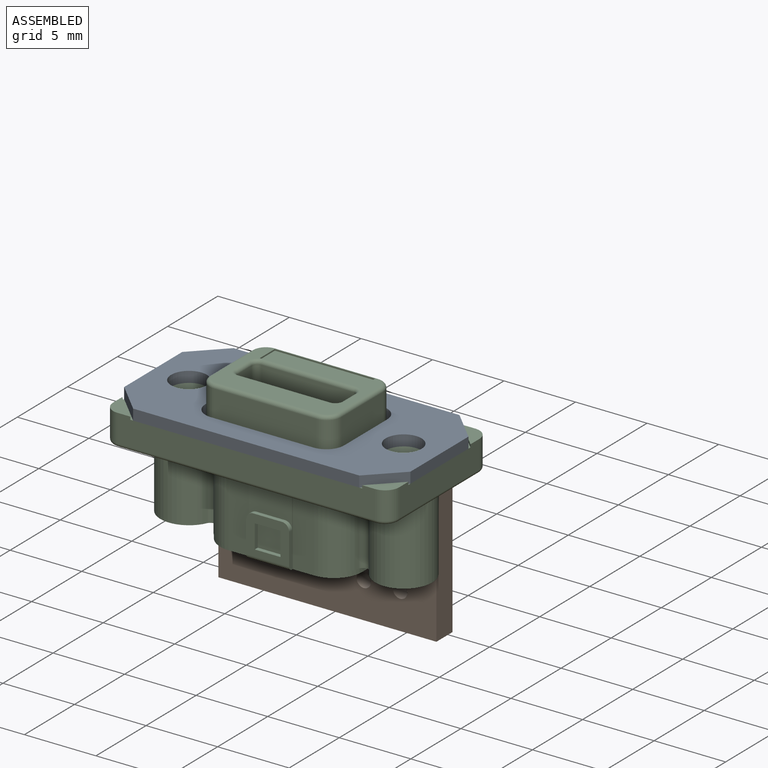
[diagram: assembled view]
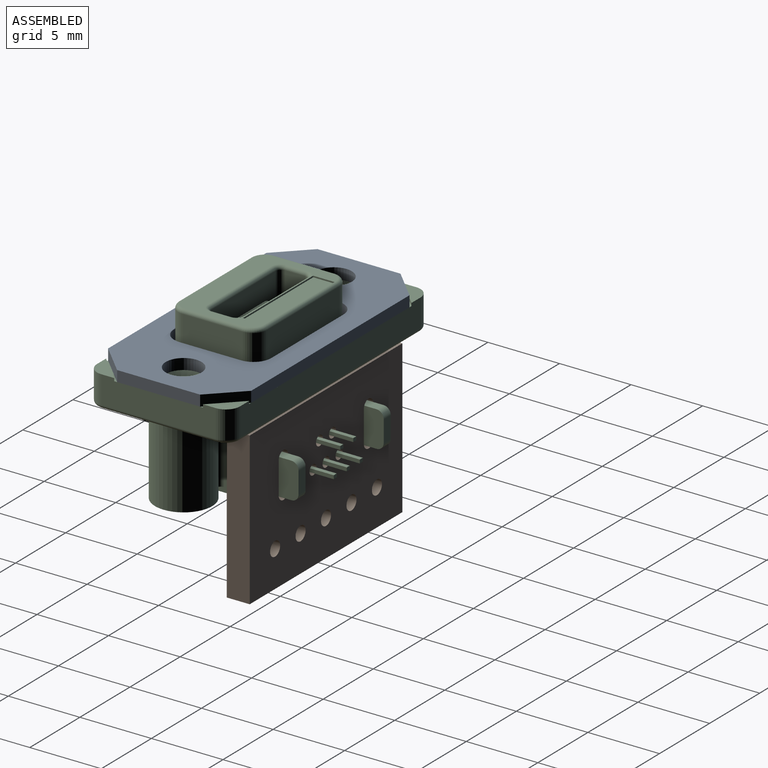
[diagram: assembled view, second angle]
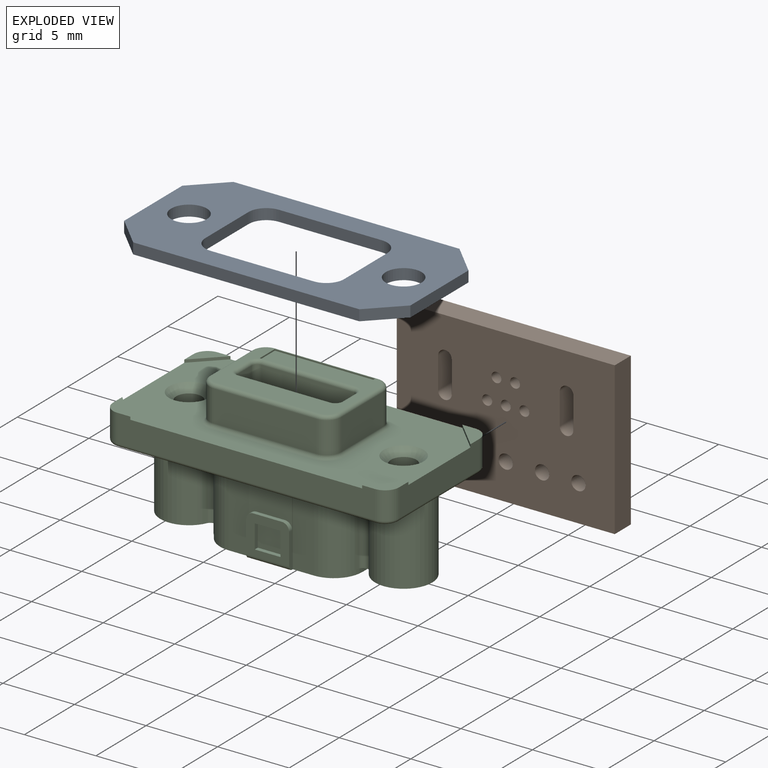
[diagram: exploded view]
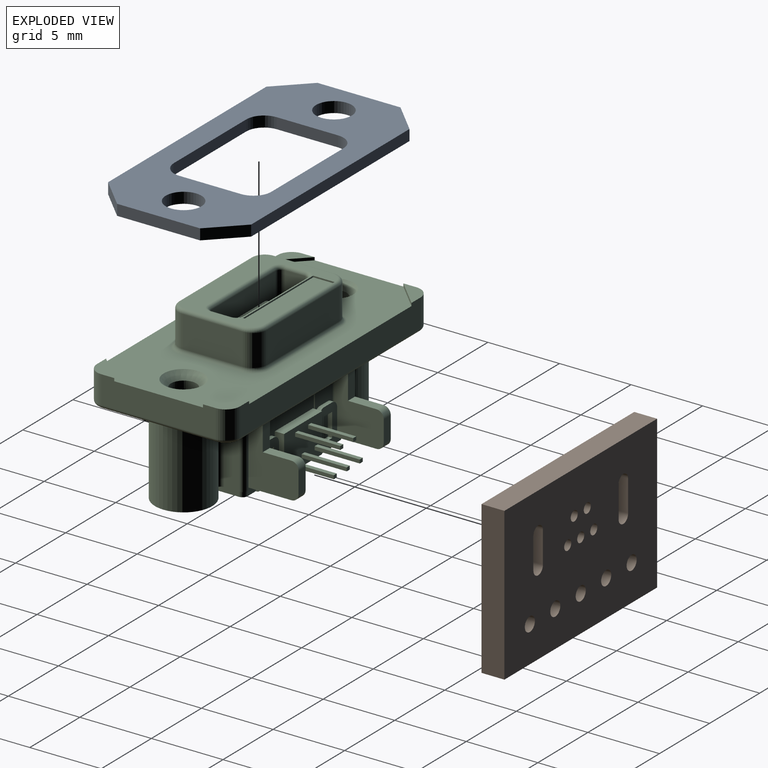
[diagram: exploded view, second angle]
ASSEMBLY  parts=3 mates=2
PART A: 20 faces, bbox 20x10x0.8 mm
  f0: plane 20x10mm, normal (0,0,1), area 116.7mm2, adj f1,f2,f3,f4,f5,f6,f7,f8
  f1: plane 2.1x2.1mm, normal (0.71,-0.71,0), area 2.3mm2, adj f0,f2,f12,f14
  f2: plane 5.8x0.76mm, normal (1,0,0), area 4.4mm2, adj f0,f1,f3,f12
  f3: plane 2.1x2.1mm, normal (0.71,0.71,0), area 2.3mm2, adj f0,f2,f4,f12
  f4: plane 15.8x0.76mm, normal (0,1,0), area 12mm2, adj f0,f3,f5,f12
  f5: plane 2.1x2.1mm, normal (-0.71,0.71,0), area 2.3mm2, adj f0,f4,f12,f13
  f6: plane 4.3x0.76mm, normal (1,0,0), area 3.3mm2, adj f0,f7,f11,f12
  f7: cylinder r=1.25mm len=1.25mm, axis (0,0,-1), area 1.5mm2, adj f0,f6,f8,f12
  f8: plane 7.2x0.76mm, normal (0,-1,0), area 5.5mm2, adj f0,f7,f9,f12
  f9: cylinder r=1.25mm len=1.25mm, axis (0,0,-1), area 1.5mm2, adj f0,f8,f10,f12
  f10: plane 4.3x0.76mm, normal (-1,0,0), area 3.3mm2, adj f0,f9,f12,f16
  f11: cylinder r=1.25mm len=1.25mm, axis (0,0,-1), area 1.5mm2, adj f0,f6,f12,f17
  f12: plane 20x10mm, normal (0,0,-1), area 116.7mm2, adj f1,f2,f3,f4,f5,f6,f7,f8
  f13: plane 5.8x0.76mm, normal (-1,0,0), area 4.4mm2, adj f0,f5,f12,f15
  f14: plane 15.8x0.76mm, normal (0,-1,0), area 12mm2, adj f0,f1,f12,f15
  f15: plane 2.1x2.1mm, normal (-0.71,-0.71,0), area 2.3mm2, adj f0,f12,f13,f14
  f16: cylinder r=1.25mm len=1.25mm, axis (0,0,-1), area 1.5mm2, adj f0,f10,f12,f17
  f17: plane 7.2x0.76mm, normal (0,1,0), area 5.5mm2, adj f0,f11,f12,f16
  f18: cylinder r=1.25mm len=2.5mm, axis (0,0,-1), area 6mm2, adj f0,f12
  f19: cylinder r=1.25mm len=2.5mm, axis (0,0,-1), area 6mm2, adj f0,f12
PART B: 24 faces, bbox 15.2x1.6x10.7 mm
  f0: cylinder r=0.47mm len=1.6mm, axis (0,-1,0), area 2.4mm2, adj f1,f21,f22,f23
  f1: plane 2.2x1.6mm, normal (1,0,0), area 3.5mm2, adj f0,f2,f22,f23
  f2: cylinder r=0.47mm len=1.6mm, axis (0,-1,0), area 2.4mm2, adj f1,f21,f22,f23
  f3: plane 15.24x1.6mm, normal (0,0,1), area 24.4mm2, adj f4,f19,f22,f23
  f4: plane 10.66x1.6mm, normal (1,0,0), area 17.1mm2, adj f3,f5,f22,f23
  f5: plane 15.24x1.6mm, normal (0,0,-1), area 24.4mm2, adj f4,f19,f22,f23
  f6: cylinder r=0.47mm len=1.6mm, axis (0,-1,0), area 2.4mm2, adj f7,f20,f22,f23
  f7: plane 2.2x1.6mm, normal (-1,0,0), area 3.5mm2, adj f6,f8,f22,f23
  f8: cylinder r=0.47mm len=1.6mm, axis (0,-1,0), area 2.4mm2, adj f7,f20,f22,f23
  f9: cylinder r=0.5mm len=1.6mm, axis (0,-1,0), area 5mm2, adj f22,f23
  f10: cylinder r=0.5mm len=1.6mm, axis (0,-1,0), area 5mm2, adj f22,f23
  f11: cylinder r=0.5mm len=1.6mm, axis (0,-1,0), area 5mm2, adj f22,f23
  f12: cylinder r=0.5mm len=1.6mm, axis (0,-1,0), area 5mm2, adj f22,f23
  f13: cylinder r=0.5mm len=1.6mm, axis (0,-1,0), area 5mm2, adj f22,f23
  f14: cylinder r=0.35mm len=1.6mm, axis (0,-1,0), area 3.5mm2, adj f22,f23
  f15: cylinder r=0.35mm len=1.6mm, axis (0,-1,0), area 3.5mm2, adj f22,f23
  f16: cylinder r=0.35mm len=1.6mm, axis (0,-1,0), area 3.5mm2, adj f22,f23
  f17: cylinder r=0.35mm len=1.6mm, axis (0,-1,0), area 3.5mm2, adj f22,f23
  f18: cylinder r=0.35mm len=1.6mm, axis (0,-1,0), area 3.5mm2, adj f22,f23
  f19: plane 10.66x1.6mm, normal (-1,0,0), area 17.1mm2, adj f3,f5,f22,f23
  f20: plane 2.2x1.6mm, normal (1,0,0), area 3.5mm2, adj f6,f8,f22,f23
  f21: plane 2.2x1.6mm, normal (-1,0,0), area 3.5mm2, adj f0,f2,f22,f23
  f22: plane 15.24x10.66mm, normal (0,1,0), area 151mm2, adj f0,f1,f2,f3,f4,f5,f6,f7
  f23: plane 15.24x10.66mm, normal (0,-1,0), area 151mm2, adj f0,f1,f2,f3,f4,f5,f6,f7
PART C: 225 faces, bbox 20.2x11.3x10.5 mm
  f0: plane 5.48x0.78mm, normal (0,1,0), area 1.1mm2, adj f6,f81,f82,f83,f175,f180,f181,f183
  f1: plane 5.48x0.78mm, normal (0,1,0), area 1.1mm2, adj f6,f84,f90,f91,f166,f171,f172,f174
  f2: plane 5.83x4mm, normal (0,1,0), area 13mm2, adj f6,f104,f105,f108,f136,f137,f138,f139
  f3: plane 3.33x1.8mm, normal (0,1,0), area 5.2mm2, adj f6,f103,f104,f130,f131,f132
  f4: plane 3.33x1.8mm, normal (0,1,0), area 5.2mm2, adj f6,f105,f106,f121,f122,f123
  f5: plane 3.33x3mm, normal (0,-1,0), area 8.6mm2, adj f6,f99,f100,f110,f115,f116
  f6: plane 19.5x9.5mm, normal (0,0,-1), area 109.8mm2, adj f0,f1,f2,f3,f4,f5,f76,f77
  f7: plane 20x10mm, normal (0,0,1), area 117mm2, adj f8,f10,f12,f14,f17,f19,f21,f23
  f8: plane 8x1.95mm, normal (-1,0,0), area 14.4mm2, adj f7,f9,f15,f20,f21,f22,f23,f217
  f9: cylinder r=1mm len=1.95mm, axis (0,0,1), area 3.1mm2, adj f8,f10,f20,f219
  f10: plane 18x1.95mm, normal (0,-1,0), area 31.9mm2, adj f7,f9,f11,f18,f19,f20,f21,f221
  f11: cylinder r=1mm len=1.95mm, axis (0,0,1), area 3.1mm2, adj f10,f12,f18,f223
  f12: plane 8x1.95mm, normal (1,0,0), area 14.4mm2, adj f7,f11,f13,f16,f17,f18,f19,f224
  f13: cylinder r=1mm len=1.95mm, axis (0,0,1), area 3.1mm2, adj f12,f14,f16,f222
  f14: plane 18x1.95mm, normal (0,1,0), area 31.9mm2, adj f7,f13,f15,f16,f17,f22,f23,f220
  f15: cylinder r=1mm len=1.95mm, axis (0,0,1), area 3.1mm2, adj f8,f14,f22,f218
  f16: plane 1.9x1.9mm, normal (0,0,1), area 1.6mm2, adj f12,f13,f14,f17
  f17: plane 1.9x1.9mm, normal (-0.71,-0.71,0), area 0.5mm2, adj f7,f12,f14,f16
  f18: plane 1.9x1.9mm, normal (0,0,1), area 1.6mm2, adj f10,f11,f12,f19
  f19: plane 1.9x1.9mm, normal (-0.71,0.71,0), area 0.5mm2, adj f7,f10,f12,f18
  f20: plane 1.9x1.9mm, normal (0,0,1), area 1.6mm2, adj f8,f9,f10,f21
  f21: plane 1.9x1.9mm, normal (0.71,0.71,0), area 0.5mm2, adj f7,f8,f10,f20
  f22: plane 1.9x1.9mm, normal (0,0,1), area 1.6mm2, adj f8,f14,f15,f23
  f23: plane 1.9x1.9mm, normal (0.71,-0.71,0), area 0.5mm2, adj f7,f8,f14,f22
  f24: plane 8.7x5.7mm, normal (0,0,1), area 18.3mm2, adj f39,f40,f43,f193,f194,f195,f196,f197
  f25: cylinder r=1mm len=2.2mm, axis (0,0,-1), area 3.5mm2, adj f26,f44,f199,f214
  f26: plane 7.2x2.2mm, normal (0,-1,0), area 15.8mm2, adj f25,f27,f197,f216
  f27: cylinder r=1mm len=2.2mm, axis (0,0,-1), area 3.5mm2, adj f26,f28,f195,f215
  f28: plane 4.2x2.2mm, normal (1,0,0), area 9.2mm2, adj f27,f29,f193,f213
  f29: cylinder r=1mm len=2.2mm, axis (0,0,-1), area 3.5mm2, adj f28,f30,f194,f211
  f30: plane 7.2x2.2mm, normal (0,1,0), area 15.8mm2, adj f29,f31,f196,f209
  f31: cylinder r=1mm len=2.2mm, axis (0,0,-1), area 3.5mm2, adj f30,f44,f198,f210
  f32: plane 6.42x2.45mm, normal (0,-1,0), area 15.7mm2, adj f33,f42,f45,f208
  f33: cylinder r=0.4mm len=2.45mm, axis (0,0,-1), area 1.5mm2, adj f32,f34,f45,f206
  f34: plane 2.45x1.38mm, normal (-1,0,0), area 3.4mm2, adj f33,f35,f45,f204
  f35: cylinder r=0.4mm len=2.45mm, axis (0,0,-1), area 1.5mm2, adj f34,f36,f45,f202
  f36: plane 6.42x2.45mm, normal (0,1,0), area 15.7mm2, adj f35,f37,f45,f201
  f37: cylinder r=0.4mm len=2.45mm, axis (0,0,-1), area 1.5mm2, adj f36,f38,f45,f203
  f38: plane 2.45x1.38mm, normal (1,0,0), area 3.4mm2, adj f37,f42,f45,f205
  f39: plane 7x0.1mm, normal (0,1,0), area 0.7mm2, adj f24,f40,f43,f46
  f40: plane 1.5x0.1mm, normal (1,0,0), area 0.2mm2, adj f24,f39,f41,f46
  f41: plane 7x0.1mm, normal (0,-1,0), area 0.7mm2, adj f40,f43,f46,f196
  f42: cylinder r=0.4mm len=2.45mm, axis (0,0,-1), area 1.5mm2, adj f32,f38,f45,f207
  f43: plane 1.5x0.1mm, normal (-1,0,0), area 0.2mm2, adj f24,f39,f41,f46
  f44: plane 4.2x2.2mm, normal (-1,0,0), area 9.2mm2, adj f25,f31,f200,f212
  f45: plane 7.22x2.18mm, normal (0,0,1), area 14mm2, adj f32,f33,f34,f35,f36,f37,f38,f42
  f46: plane 7x1.5mm, normal (0,0,1), area 10.5mm2, adj f39,f40,f41,f43
  f47: plane 3.46x0.6mm, normal (0,0,1), area 1.6mm2, adj f48,f49,f50,f51,f52,f53,f54,f55
  f48: plane 1.27x0.4mm, normal (0,1,0), area 0.5mm2, adj f45,f47,f49,f75
  f49: plane 1.27x0.23mm, normal (1,0,0), area 0.3mm2, adj f45,f47,f48,f50
  f50: plane 1.27x0.08mm, normal (0,1,0), area 0.1mm2, adj f45,f47,f49,f51
  f51: cylinder r=0.15mm len=1.27mm, axis (0,0,-1), area 0.3mm2, adj f45,f47,f50,f52
  f52: plane 1.27x0.3mm, normal (-1,0,0), area 0.4mm2, adj f45,f47,f51,f53
  f53: cylinder r=0.15mm len=1.27mm, axis (0,0,-1), area 0.3mm2, adj f45,f47,f52,f54
  f54: plane 3.16x1.27mm, normal (0,-1,0), area 4mm2, adj f45,f47,f53,f55
  f55: cylinder r=0.15mm len=1.27mm, axis (0,0,-1), area 0.3mm2, adj f45,f47,f54,f56
  f56: plane 1.27x0.3mm, normal (1,0,0), area 0.4mm2, adj f45,f47,f55,f57
  f57: cylinder r=0.15mm len=1.27mm, axis (0,0,-1), area 0.3mm2, adj f45,f47,f56,f58
  f58: plane 1.27x0.08mm, normal (0,1,0), area 0.1mm2, adj f45,f47,f57,f59
  f59: plane 1.27x0.23mm, normal (-1,0,0), area 0.3mm2, adj f45,f47,f58,f60
  f60: plane 1.27x0.4mm, normal (0,1,0), area 0.5mm2, adj f45,f47,f59,f61
  f61: plane 1.27x0.23mm, normal (1,0,0), area 0.3mm2, adj f45,f47,f60,f62
  f62: plane 1.27x0.25mm, normal (0,1,0), area 0.3mm2, adj f45,f47,f61,f63
  f63: plane 1.27x0.24mm, normal (-1,0,0), area 0.3mm2, adj f45,f47,f62,f64
  f64: plane 1.27x0.4mm, normal (0,1,0), area 0.5mm2, adj f45,f47,f63,f65
  f65: plane 1.27x0.24mm, normal (1,0,0), area 0.3mm2, adj f45,f47,f64,f66
  f66: plane 1.27x0.25mm, normal (0,1,0), area 0.3mm2, adj f45,f47,f65,f67
  f67: plane 1.27x0.25mm, normal (-1,0,0), area 0.3mm2, adj f45,f47,f66,f68
  f68: plane 1.27x0.4mm, normal (0,1,0), area 0.5mm2, adj f45,f47,f67,f69
  f69: plane 1.27x0.25mm, normal (1,0,0), area 0.3mm2, adj f45,f47,f68,f70
  f70: plane 1.27x0.25mm, normal (0,1,0), area 0.3mm2, adj f45,f47,f69,f71
  f71: plane 1.27x0.24mm, normal (-1,0,0), area 0.3mm2, adj f45,f47,f70,f72
  f72: plane 1.27x0.4mm, normal (0,1,0), area 0.5mm2, adj f45,f47,f71,f73
  f73: plane 1.27x0.24mm, normal (1,0,0), area 0.3mm2, adj f45,f47,f72,f74
  f74: plane 1.27x0.25mm, normal (0,1,0), area 0.3mm2, adj f45,f47,f73,f75
  f75: plane 1.27x0.23mm, normal (-1,0,0), area 0.3mm2, adj f45,f47,f48,f74
  f76: cylinder r=2mm len=5.48mm, axis (0,0,-1), area 15mm2, adj f6,f77,f83,f92
  f77: cylinder r=0.38mm len=5.48mm, axis (0,0,-1), area 5.2mm2, adj f6,f76,f78,f83
  f78: cylinder r=2mm len=5.48mm, axis (0,0,-1), area 59mm2, adj f6,f77,f79,f83
  f79: cylinder r=0.38mm len=5.48mm, axis (0,0,-1), area 5.6mm2, adj f6,f78,f80,f83
  f80: plane 5.48x1.07mm, normal (-1,0,0), area 5.9mm2, adj f6,f79,f81,f83
  f81: cylinder r=0.35mm len=5.48mm, axis (0,0,-1), area 3mm2, adj f0,f6,f80,f83
  f82: plane 5.48x0.05mm, normal (1,0,0), area 0.3mm2, adj f0,f6,f83,f102
  f83: plane 6.5x5mm, normal (0,0,-1), area 13.5mm2, adj f0,f76,f77,f78,f79,f80,f81,f82
  f84: cylinder r=0.35mm len=5.48mm, axis (0,0,-1), area 3mm2, adj f1,f6,f85,f90
  f85: plane 5.48x1.07mm, normal (1,0,0), area 5.9mm2, adj f6,f84,f86,f90
  f86: cylinder r=0.38mm len=5.48mm, axis (0,0,-1), area 5.6mm2, adj f6,f85,f87,f90
  f87: cylinder r=2mm len=5.48mm, axis (0,0,-1), area 59mm2, adj f6,f86,f88,f90
  f88: cylinder r=0.38mm len=5.48mm, axis (0,0,-1), area 5.2mm2, adj f6,f87,f89,f90
  f89: cylinder r=2mm len=5.48mm, axis (0,0,-1), area 15mm2, adj f6,f88,f90,f107
  f90: plane 6.5x5mm, normal (0,0,-1), area 13.5mm2, adj f1,f84,f85,f86,f87,f88,f89,f91
  f91: plane 5.48x0.05mm, normal (-1,0,0), area 0.3mm2, adj f1,f6,f90,f95
  f92: cylinder r=2mm len=5.83mm, axis (0,0,-1), area 1.2mm2, adj f6,f76,f83,f93,f101,f108
  f93: plane 2.6x0.35mm, normal (-1,0,0), area 0.9mm2, adj f83,f92,f94,f108
  f94: cylinder r=0.35mm len=0.35mm, axis (0,0,-1), area 0.2mm2, adj f83,f93,f102,f108
  f95: plane 5.83x0.83mm, normal (0,1,0), area 0.7mm2, adj f6,f90,f91,f96,f106,f108
  f96: cylinder r=0.35mm len=0.35mm, axis (0,0,-1), area 0.2mm2, adj f90,f95,f97,f108
  f97: plane 2.6x0.35mm, normal (1,0,0), area 0.9mm2, adj f90,f96,f107,f108
  f98: plane 5.83x1.48mm, normal (0,-1,0), area 8.6mm2, adj f6,f99,f107,f108
  f99: plane 5.83x0.37mm, normal (1,0,0), area 1.1mm2, adj f5,f6,f98,f108,f110,f111,f184
  f100: plane 5.83x0.37mm, normal (-1,0,0), area 1.1mm2, adj f5,f6,f101,f108,f111,f116,f184
  f101: plane 5.83x1.48mm, normal (0,-1,0), area 8.6mm2, adj f6,f92,f100,f108
  f102: plane 5.83x0.83mm, normal (0,1,0), area 0.7mm2, adj f6,f82,f83,f94,f103,f108
  f103: plane 5.83x0.37mm, normal (-1,0,0), area 1.1mm2, adj f3,f6,f102,f108,f130,f134,f185
  f104: plane 5.83x0.37mm, normal (1,0,0), area 1.1mm2, adj f2,f3,f6,f108,f132,f134,f185
  f105: plane 5.83x0.37mm, normal (-1,0,0), area 1.1mm2, adj f2,f4,f6,f108,f121,f125,f186
  f106: plane 5.83x0.37mm, normal (1,0,0), area 1.1mm2, adj f4,f6,f95,f108,f123,f125,f186
  f107: cylinder r=2mm len=5.83mm, axis (0,0,-1), area 1.2mm2, adj f6,f89,f90,f97,f98,f108
  f108: plane 9.95x5.08mm, normal (0,0,-1), area 47.9mm2, adj f2,f92,f93,f94,f95,f96,f97,f98
  f109: plane 1.65x0.3mm, normal (1,0,0), area 0.5mm2, adj f111,f112,f113,f117
  f110: cylinder r=0.5mm len=0.5mm, axis (0,-1,0), area 0.2mm2, adj f5,f99,f111,f115
  f111: plane 3x2.7mm, normal (0,-1,0), area 5mm2, adj f99,f100,f109,f110,f112,f113,f114,f115
  f112: plane 1.8x0.3mm, normal (0,0,1), area 0.5mm2, adj f109,f111,f114,f117
  f113: plane 1.8x0.3mm, normal (0,0,-1), area 0.5mm2, adj f109,f111,f114,f117
  f114: plane 1.65x0.3mm, normal (-1,0,0), area 0.5mm2, adj f111,f112,f113,f117
  f115: plane 2x0.3mm, normal (0,0,1), area 0.6mm2, adj f5,f110,f111,f116
  f116: cylinder r=0.5mm len=0.5mm, axis (0,-1,0), area 0.2mm2, adj f5,f100,f111,f115
  f117: plane 1.8x1.65mm, normal (0,-1,0), area 3mm2, adj f109,f112,f113,f114
  f118: plane 0.8x0.3mm, normal (0,0,-1), area 0.2mm2, adj f119,f124,f125,f126
  f119: plane 1.65x0.3mm, normal (1,0,0), area 0.5mm2, adj f118,f120,f125,f126
  f120: plane 0.8x0.3mm, normal (0,0,1), area 0.2mm2, adj f119,f124,f125,f126
  f121: cylinder r=0.5mm len=0.5mm, axis (0,1,0), area 0.2mm2, adj f4,f105,f122,f125
  f122: plane 0.8x0.3mm, normal (0,0,1), area 0.2mm2, adj f4,f121,f123,f125
  f123: cylinder r=0.5mm len=0.5mm, axis (0,1,0), area 0.2mm2, adj f4,f106,f122,f125
  f124: plane 1.65x0.3mm, normal (-1,0,0), area 0.5mm2, adj f118,f120,f125,f126
  f125: plane 2.7x1.8mm, normal (0,1,0), area 3.4mm2, adj f105,f106,f118,f119,f120,f121,f122,f123
  f126: plane 1.65x0.8mm, normal (0,1,0), area 1.3mm2, adj f118,f119,f120,f124
  f127: plane 1.65x0.3mm, normal (-1,0,0), area 0.5mm2, adj f128,f133,f134,f135
  f128: plane 0.8x0.3mm, normal (0,0,-1), area 0.2mm2, adj f127,f129,f134,f135
  f129: plane 1.65x0.3mm, normal (1,0,0), area 0.5mm2, adj f128,f133,f134,f135
  f130: cylinder r=0.5mm len=0.5mm, axis (0,1,0), area 0.2mm2, adj f3,f103,f131,f134
  f131: plane 0.8x0.3mm, normal (0,0,1), area 0.2mm2, adj f3,f130,f132,f134
  f132: cylinder r=0.5mm len=0.5mm, axis (0,1,0), area 0.2mm2, adj f3,f104,f131,f134
  f133: plane 0.8x0.3mm, normal (0,0,1), area 0.2mm2, adj f127,f129,f134,f135
  f134: plane 2.7x1.8mm, normal (0,1,0), area 3.4mm2, adj f103,f104,f127,f128,f129,f130,f131,f132
  f135: plane 1.65x0.8mm, normal (0,1,0), area 1.3mm2, adj f127,f128,f129,f133
  f136: plane 2.72x0.65mm, normal (-1,0,0), area 1.8mm2, adj f2,f137,f139,f140
  f137: plane 3.8x0.65mm, normal (0,0,1), area 2.5mm2, adj f2,f136,f138,f140
  f138: plane 2.72x0.65mm, normal (1,0,0), area 1.8mm2, adj f2,f137,f139,f140
  f139: plane 3.8x0.65mm, normal (0,0,-1), area 2.5mm2, adj f2,f136,f138,f140
  f140: plane 3.8x2.72mm, normal (0,1,0), area 10mm2, adj f136,f137,f138,f139,f141,f142,f143,f144
  f141: plane 3.15x0.3mm, normal (0,0,1), area 0.9mm2, adj f140,f142,f144,f145
  f142: plane 3.15x0.25mm, normal (1,0,0), area 0.8mm2, adj f140,f141,f143,f145
  f143: plane 3.15x0.3mm, normal (0,0,-1), area 0.9mm2, adj f140,f142,f144,f145
  f144: plane 3.15x0.25mm, normal (-1,0,0), area 0.8mm2, adj f140,f141,f143,f145
  f145: plane 0.3x0.25mm, normal (0,1,0), area 0.1mm2, adj f141,f142,f143,f144
  f146: plane 3.15x0.3mm, normal (0,0,-1), area 0.9mm2, adj f140,f147,f149,f150
  f147: plane 3.15x0.25mm, normal (-1,0,0), area 0.8mm2, adj f140,f146,f148,f150
  f148: plane 3.15x0.3mm, normal (0,0,1), area 0.9mm2, adj f140,f147,f149,f150
  f149: plane 3.15x0.25mm, normal (1,0,0), area 0.8mm2, adj f140,f146,f148,f150
  f150: plane 0.3x0.25mm, normal (0,1,0), area 0.1mm2, adj f146,f147,f148,f149
  f151: plane 3.15x0.3mm, normal (0,0,-1), area 0.9mm2, adj f140,f152,f154,f155
  f152: plane 3.15x0.25mm, normal (-1,0,0), area 0.8mm2, adj f140,f151,f153,f155
  f153: plane 3.15x0.3mm, normal (0,0,1), area 0.9mm2, adj f140,f152,f154,f155
  f154: plane 3.15x0.25mm, normal (1,0,0), area 0.8mm2, adj f140,f151,f153,f155
  f155: plane 0.3x0.25mm, normal (0,1,0), area 0.1mm2, adj f151,f152,f153,f154
  f156: plane 3.15x0.25mm, normal (1,0,0), area 0.8mm2, adj f140,f157,f158,f160
  f157: plane 3.15x0.3mm, normal (0,0,1), area 0.9mm2, adj f140,f156,f159,f160
  f158: plane 3.15x0.3mm, normal (0,0,-1), area 0.9mm2, adj f140,f156,f159,f160
  f159: plane 3.15x0.25mm, normal (-1,0,0), area 0.8mm2, adj f140,f157,f158,f160
  f160: plane 0.3x0.25mm, normal (0,1,0), area 0.1mm2, adj f156,f157,f158,f159
  f161: plane 3.15x0.25mm, normal (-1,0,0), area 0.8mm2, adj f140,f162,f163,f165
  f162: plane 3.15x0.3mm, normal (0,0,-1), area 0.9mm2, adj f140,f161,f164,f165
  f163: plane 3.15x0.3mm, normal (0,0,1), area 0.9mm2, adj f140,f161,f164,f165
  f164: plane 3.15x0.25mm, normal (1,0,0), area 0.8mm2, adj f140,f162,f163,f165
  f165: plane 0.3x0.25mm, normal (0,1,0), area 0.1mm2, adj f161,f162,f163,f164
  f166: plane 4.5x3.5mm, normal (-1,0,0), area 10.6mm2, adj f1,f167,f168,f169,f170,f171,f172,f173
  f167: plane 1.5x0.7mm, normal (0,1,0), area 1mm2, adj f166,f168,f173,f174
  f168: cylinder r=0.5mm len=0.7mm, axis (1,0,0), area 0.5mm2, adj f166,f167,f169,f174
  f169: plane 2x0.7mm, normal (0,0,1), area 1.4mm2, adj f166,f168,f170,f174
  f170: plane 2x0.7mm, normal (0,1,0), area 1.4mm2, adj f166,f169,f171,f174
  f171: plane 1x0.7mm, normal (0,0,1), area 0.7mm2, adj f1,f166,f170,f174
  f172: plane 3x0.7mm, normal (0,0,-1), area 2.1mm2, adj f1,f166,f173,f174
  f173: cylinder r=0.5mm len=0.7mm, axis (1,0,0), area 0.5mm2, adj f166,f167,f172,f174
  f174: plane 4.5x3.5mm, normal (1,0,0), area 10.6mm2, adj f1,f167,f168,f169,f170,f171,f172,f173
  f175: plane 4.5x3.5mm, normal (-1,0,0), area 10.6mm2, adj f0,f176,f177,f178,f179,f180,f181,f182
  f176: plane 1.5x0.7mm, normal (0,1,0), area 1mm2, adj f175,f177,f182,f183
  f177: cylinder r=0.5mm len=0.7mm, axis (1,0,0), area 0.5mm2, adj f175,f176,f178,f183
  f178: plane 2x0.7mm, normal (0,0,1), area 1.4mm2, adj f175,f177,f179,f183
  f179: plane 2x0.7mm, normal (0,1,0), area 1.4mm2, adj f175,f178,f180,f183
  f180: plane 1x0.7mm, normal (0,0,1), area 0.7mm2, adj f0,f175,f179,f183
  f181: plane 3x0.7mm, normal (0,0,-1), area 2.1mm2, adj f0,f175,f182,f183
  f182: cylinder r=0.5mm len=0.7mm, axis (1,0,0), area 0.5mm2, adj f175,f176,f181,f183
  f183: plane 4.5x3.5mm, normal (1,0,0), area 10.6mm2, adj f0,f176,f177,f178,f179,f180,f181,f182
  f184: cylinder r=0.3mm len=3mm, axis (1,0,0), area 1.4mm2, adj f99,f100,f108,f111
  f185: cylinder r=0.3mm len=1.8mm, axis (-1,0,0), area 0.8mm2, adj f103,f104,f108,f134
  f186: cylinder r=0.3mm len=1.8mm, axis (-1,0,0), area 0.8mm2, adj f105,f106,f108,f125
  f187: cone r=0mm half-angle=59deg, axis (0,0,1), area 2.9mm2, adj f188
  f188: cylinder r=0.89mm len=5.5mm, axis (0,0,1), area 30.7mm2, adj f187,f191
  f189: cone r=0mm half-angle=59deg, axis (0,0,1), area 2.9mm2, adj f190
  f190: cylinder r=0.89mm len=5.5mm, axis (0,0,1), area 30.7mm2, adj f189,f192
  f191: cone r=0.89mm half-angle=45deg, axis (0,0,1), area 5.1mm2, adj f7,f188
  f192: cone r=0.89mm half-angle=45deg, axis (0,0,1), area 5.1mm2, adj f7,f190
  f193: cylinder r=0.25mm len=4.2mm, axis (0,-1,0), area 1.6mm2, adj f24,f28,f194,f195
  f194: torus R=0.75mm, axis (0,0,1), area 0.6mm2, adj f24,f29,f193,f196
  f195: torus R=0.75mm, axis (0,0,1), area 0.6mm2, adj f24,f27,f193,f197
  f196: cylinder r=0.25mm len=7.2mm, axis (1,0,0), area 2.8mm2, adj f24,f30,f41,f194,f198
  f197: cylinder r=0.25mm len=7.2mm, axis (-1,0,0), area 2.8mm2, adj f24,f26,f195,f199
  f198: torus R=0.75mm, axis (0,0,1), area 0.6mm2, adj f24,f31,f196,f200
  f199: torus R=0.75mm, axis (0,0,1), area 0.6mm2, adj f24,f25,f197,f200
  f200: cylinder r=0.25mm len=4.2mm, axis (0,1,0), area 1.6mm2, adj f24,f44,f198,f199
  f201: cylinder r=0.25mm len=6.42mm, axis (1,0,0), area 2.5mm2, adj f24,f36,f202,f203
  f202: torus R=0.65mm, axis (0,0,1), area 0.3mm2, adj f24,f35,f201,f204
  f203: torus R=0.65mm, axis (0,0,1), area 0.3mm2, adj f24,f37,f201,f205
  f204: cylinder r=0.25mm len=1.38mm, axis (0,1,0), area 0.5mm2, adj f24,f34,f202,f206
  f205: cylinder r=0.25mm len=1.38mm, axis (0,-1,0), area 0.5mm2, adj f24,f38,f203,f207
  f206: torus R=0.65mm, axis (0,0,1), area 0.3mm2, adj f24,f33,f204,f208
  f207: torus R=0.65mm, axis (0,0,1), area 0.3mm2, adj f24,f42,f205,f208
  f208: cylinder r=0.25mm len=6.42mm, axis (-1,0,0), area 2.5mm2, adj f24,f32,f206,f207
  f209: cylinder r=0.25mm len=7.2mm, axis (-1,0,0), area 2.8mm2, adj f7,f30,f210,f211
  f210: torus R=1.25mm, axis (0,0,1), area 0.7mm2, adj f7,f31,f209,f212
  f211: torus R=1.25mm, axis (0,0,1), area 0.7mm2, adj f7,f29,f209,f213
  f212: cylinder r=0.25mm len=4.2mm, axis (0,-1,0), area 1.6mm2, adj f7,f44,f210,f214
  f213: cylinder r=0.25mm len=4.2mm, axis (0,1,0), area 1.6mm2, adj f7,f28,f211,f215
  f214: torus R=1.25mm, axis (0,0,1), area 0.7mm2, adj f7,f25,f212,f216
  f215: torus R=1.25mm, axis (0,0,1), area 0.7mm2, adj f7,f27,f213,f216
  f216: cylinder r=0.25mm len=7.2mm, axis (1,0,0), area 2.8mm2, adj f7,f26,f214,f215
  f217: cylinder r=0.25mm len=8mm, axis (0,-1,0), area 3.1mm2, adj f6,f8,f218,f219
  f218: torus R=0.75mm, axis (0,0,1), area 0.6mm2, adj f6,f15,f217,f220
  f219: torus R=0.75mm, axis (0,0,1), area 0.6mm2, adj f6,f9,f217,f221
  f220: cylinder r=0.25mm len=18mm, axis (-1,0,0), area 7.1mm2, adj f6,f14,f218,f222
  f221: cylinder r=0.25mm len=18mm, axis (1,0,0), area 7.1mm2, adj f6,f10,f219,f223
  f222: torus R=0.75mm, axis (0,0,1), area 0.6mm2, adj f6,f13,f220,f224
  f223: torus R=0.75mm, axis (0,0,1), area 0.6mm2, adj f6,f11,f221,f224
  f224: cylinder r=0.25mm len=8mm, axis (0,1,0), area 3.1mm2, adj f6,f12,f222,f223
PLACE A at identity
PLACE B at identity
PLACE C at identity fixed
MATE fastened B.f15 <-> C.f140  axis (0,-1,0) through (0,3.1,-6.83)mm
MATE fastened A.f12 <-> C.f45  axis (0,0,-1) through (0,0,0)mm
